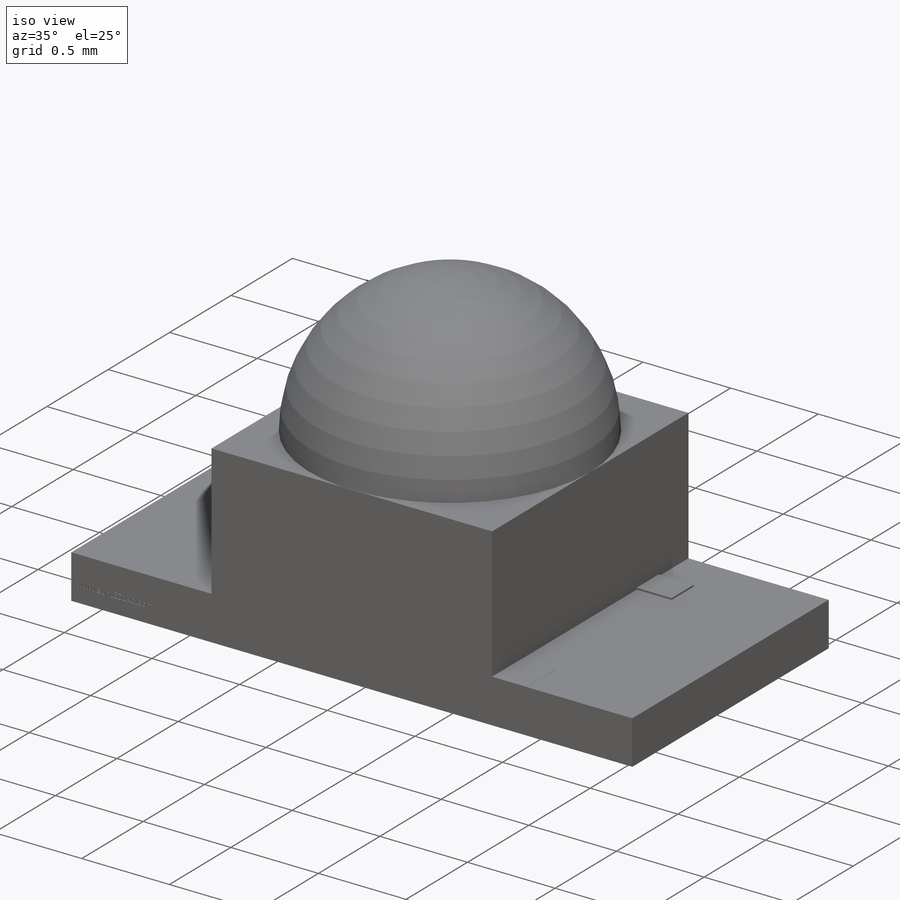
[diagram: iso view]
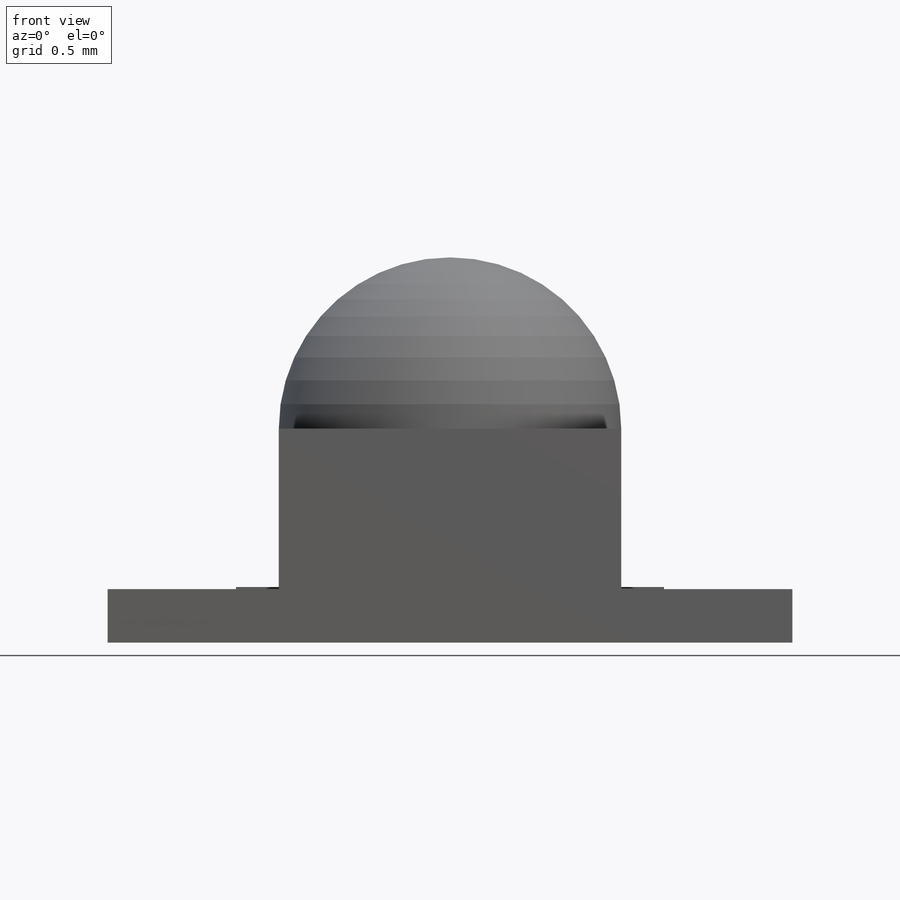
[diagram: front view]
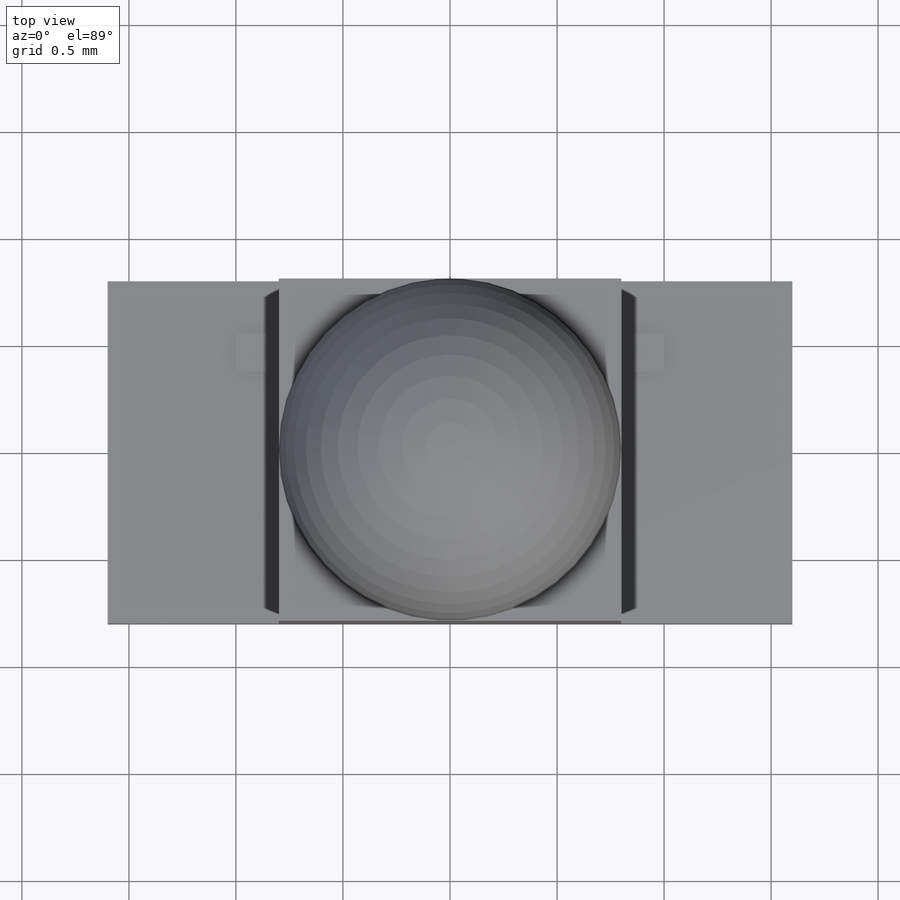
[diagram: top view]
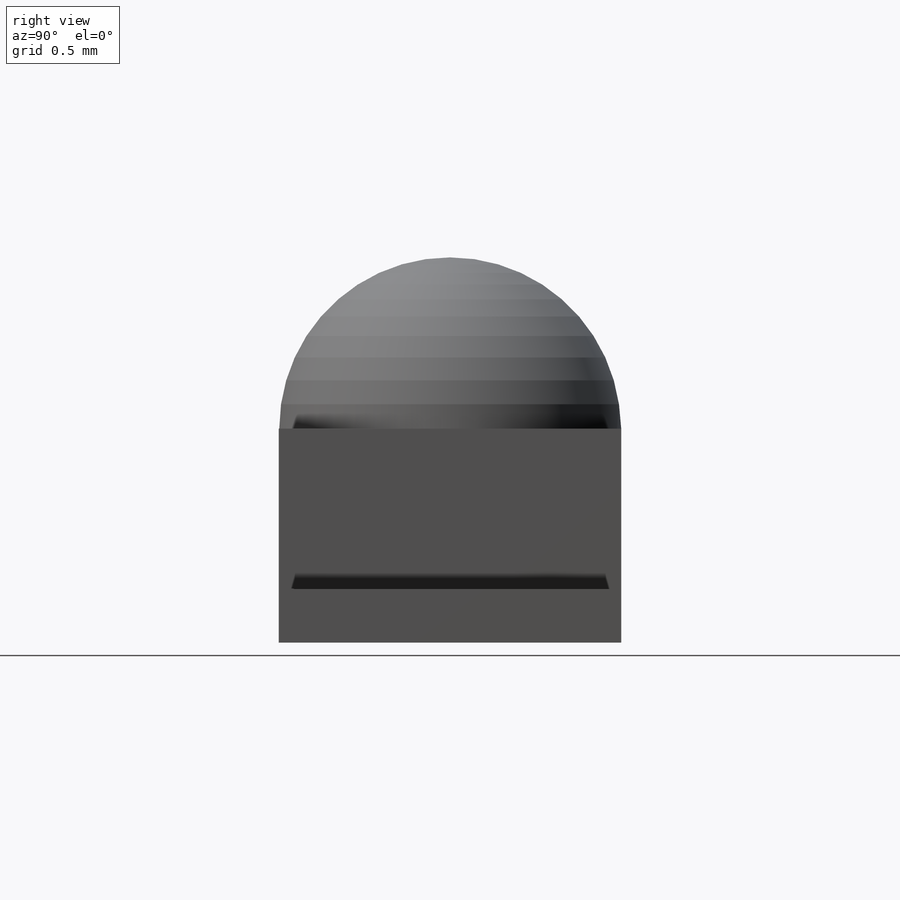
[diagram: right view]
SOLIDWORKS PART (.sldprt)
format: sldprt  version: not decoded by parser v0  size: 827,904 bytes
history: native  units: mm
features: sketch x8, extrude x6, material x1, revolve x1, cut_extrude x1 (+12 scaffold rows collapsed)
feature tree (29):
  scaffold x12  (default folders/planes/origin — collapsed)
  material  "Material <not specified>"
  sketch  "Sketch1"  dims[D3=1.6mm D1=0.25mm D2=3.2mm D4=0.75mm D5=0.6mm D6=0.5mm D7=0.03mm D8=0.03mm D9=0.03mm D10=1.6mm]
  extrude  "Extrude1"  Depth=1.6mm
  revolve  "Revolve1"  [1 undecoded]
  sketch  "Sketch1<3>"  dims[D1=360.0deg]
  extrude  "Extrude2"  [1 undecoded]
  sketch  "Sketch1<4>"  dims[D1=1.6mm]
  sketch  "Sketch2"  dims[D1=0.3mm D2=0.5mm D3=0.5mm]
  extrude  "Extrude3"  Depth=0.01mm
  sketch  "Sketch3"  dims[D1=~1.456085mm]
  extrude  "Extrude4"  Depth=0.025mm
  extrude  "Extrude6"  [1 undecoded]
  sketch  "Sketch1<6>"  dims[D1=1.6mm]
  sketch  "Sketch4"  dims[D1=0.08mm D2=0.5mm]
  cut_extrude  "Cut-Extrude1"  Depth=0.01mm
  extrude  "Extrude7"  [1 undecoded]
  sketch  "Sketch3<4>"  dims[D1=0.001mm D2=0.001mm]
decode coverage: 12 of 16 modeling features carry decoded parameters
note: ~ marks probable driven/reference dimensions
note: 4 parameter values undecoded
summary: no parameter record found for 4 features
note: suppression state not decoded; provenance and decode notes live in map.json
